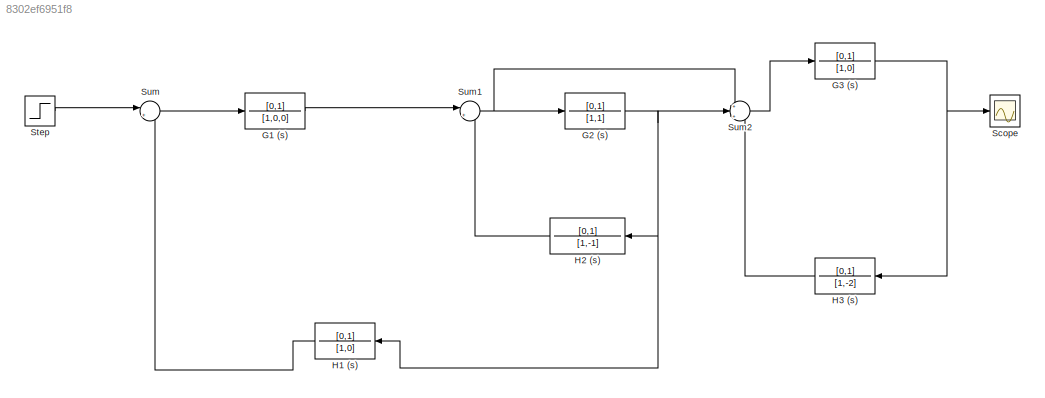
MODEL slx_8302ef6951f8
KIND model
CONFIG AbsTol = auto
CONFIG EnableMultiTasking = off
CONFIG FixedStep = auto
CONFIG MaxStep = auto
CONFIG MinStep = auto
CONFIG RelTol = 1e-3
CONFIG SampleTimeConstraint = Unconstrained
CONFIG SolverName = VariableStepAuto
CONFIG StartTime = 0.0
CONFIG StopTime = 20.0
BLOCK [TransferFcn] G1 (s)
  Denominator = [1,0,0]
  Numerator = [0,1]
BLOCK [TransferFcn] G2 (s)
  Denominator = [1,1]
  Numerator = [0,1]
BLOCK [TransferFcn] G3 (s)
  Denominator = [1,0]
  Numerator = [0,1]
BLOCK [TransferFcn] H1 (s)
  Denominator = [1,0]
  Numerator = [0,1]
BLOCK [TransferFcn] H2 (s)
  Denominator = [1,-1]
  Numerator = [0,1]
BLOCK [TransferFcn] H3 (s)
  Denominator = [1,-2]
  Numerator = [0,1]
BLOCK [Scope] Scope
  Floating = off
  NumInputPorts = 1
  ScopeSpecificationString = Simulink.scopes.TimeScopeBlockCfg('CurrentConfiguration', extmgr.ConfigurationSet(extmgr.Configuration('Core','General UI',true),extmgr.Configuration('Core','Source UI',true),extmgr.Configuration('Sources','WiredSimulink',true),extmgr.Configuration('Visuals','Time Domain',true,'SerializedDisplays',{struct('MinYLimReal','-1615831034.55115','MaxYLimReal','179536782.51258','YLabelReal','','MinYLimMag...<+1509ch>
BLOCK [Step] Step
  SampleTime = 0
  Time = 0
BLOCK [Sum] Sum
  Inputs = |+-
BLOCK [Sum] Sum1
  Inputs = |+-
BLOCK [Sum] Sum2
  Inputs = +|+-
LINE G1 (s):1 -> Sum1:1
NET G2 (s):1 -> H1 (s):1, H2 (s):1, Sum2:2
NET G3 (s):1 -> H3 (s):1, Scope:1
LINE H1 (s):1 -> Sum:2
LINE H2 (s):1 -> Sum1:2
LINE H3 (s):1 -> Sum2:3
LINE Step:1 -> Sum:1
NET Sum1:1 -> G2 (s):1, Sum2:1
LINE Sum2:1 -> G3 (s):1
LINE Sum:1 -> G1 (s):1
note: NET lines group one-source signal fan-out (src -> all destinations, sorted); 1:1 wires keep LINE
